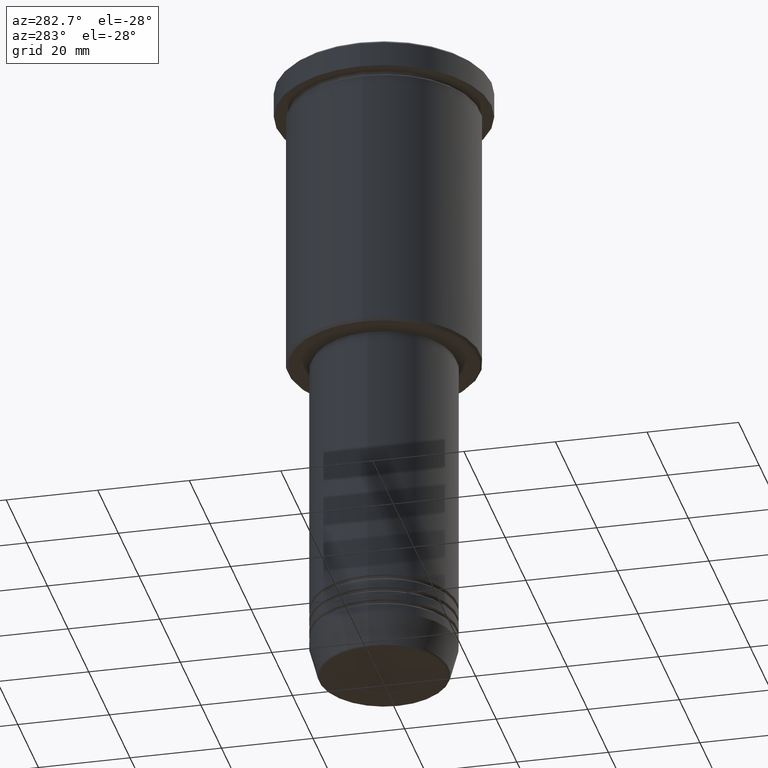
[diagram: clean part render]
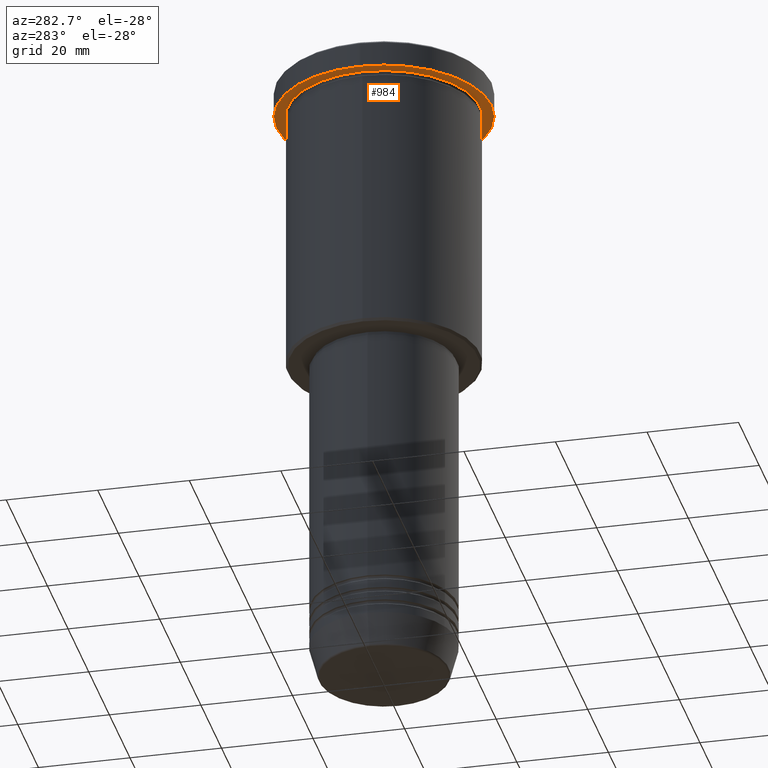
[diagram: same view with one face highlighted and labeled with its STEP entity id]
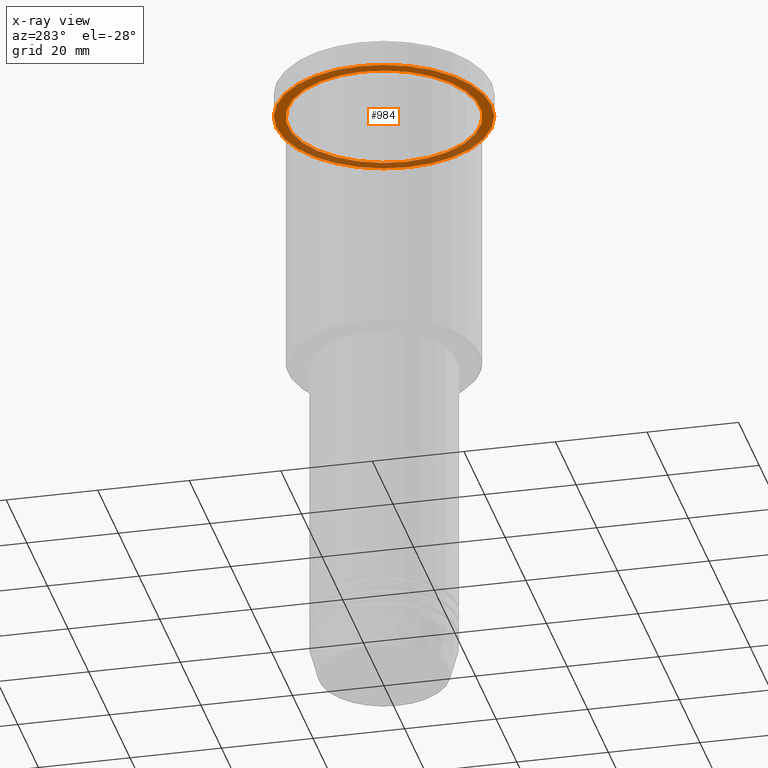
[diagram: x-ray of the same camera — body ghosted, the highlighted face saturated]
A machine part, auxiliary view. The second image highlights one B-rep face of the part: STEP entity #984.
The next image is the same camera in x-ray: the body ghosted, the highlighted face saturated — about 37% of this face is hidden behind the body in this view.
In plain terms, the highlighted planar face has unit normal (0, 0, -1).
Its self-contained STEP definition (entity closure, byte-faithful):
#4 = AXIS2_PLACEMENT_3D ( 'NONE', #1023, #185, #377 ) ;
#26 = DIRECTION ( 'NONE',  ( 1.000000000000000000, 0.000000000000000000, 0.000000000000000000 ) ) ;
#99 = VERTEX_POINT ( 'NONE', #475 ) ;
#105 = DIRECTION ( 'NONE',  ( 0.000000000000000000, 0.000000000000000000, -1.000000000000000000 ) ) ;
#177 = AXIS2_PLACEMENT_3D ( 'NONE', #527, #705, #1080 ) ;
#185 = DIRECTION ( 'NONE',  ( -0.000000000000000000, -0.000000000000000000, 1.000000000000000000 ) ) ;
#249 = ORIENTED_EDGE ( 'NONE', *, *, #891, .T. ) ;
#273 = AXIS2_PLACEMENT_3D ( 'NONE', #1066, #1155, #517 ) ;
#285 = DIRECTION ( 'NONE',  ( -1.000000000000000000, 0.000000000000000000, -0.000000000000000000 ) ) ;
#288 = AXIS2_PLACEMENT_3D ( 'NONE', #553, #105, #285 ) ;
#342 = EDGE_CURVE ( 'NONE', #1008, #99, #764, .T. ) ;
#348 = PLANE ( 'NONE',  #288 ) ;
#364 = CARTESIAN_POINT ( 'NONE',  ( -21.00000000000000000, 0.000000000000000000, -5.999999999999994671 ) ) ;
#377 = DIRECTION ( 'NONE',  ( 1.000000000000000000, 0.000000000000000000, 0.000000000000000000 ) ) ;
#409 = EDGE_LOOP ( 'NONE', ( #631, #249 ) ) ;
#468 = DIRECTION ( 'NONE',  ( -0.000000000000000000, -0.000000000000000000, 1.000000000000000000 ) ) ;
#475 = CARTESIAN_POINT ( 'NONE',  ( 21.00000000000000000, 2.571758278209441661E-15, -5.999999999999994671 ) ) ;
#501 = EDGE_CURVE ( 'NONE', #828, #1090, #516, .T. ) ;
#516 = CIRCLE ( 'NONE', #686, 23.50000000000000000 ) ;
#517 = DIRECTION ( 'NONE',  ( -1.000000000000000000, 0.000000000000000000, 0.000000000000000000 ) ) ;
#523 = EDGE_CURVE ( 'NONE', #1090, #828, #806, .T. ) ;
#527 = CARTESIAN_POINT ( 'NONE',  ( 0.000000000000000000, 0.000000000000000000, -5.999999999999994671 ) ) ;
#553 = CARTESIAN_POINT ( 'NONE',  ( 0.000000000000000000, 23.50000000000000000, -5.999999999999994671 ) ) ;
#599 = CARTESIAN_POINT ( 'NONE',  ( 23.50000000000000000, 0.000000000000000000, -5.999999999999994671 ) ) ;
#631 = ORIENTED_EDGE ( 'NONE', *, *, #342, .T. ) ;
#686 = AXIS2_PLACEMENT_3D ( 'NONE', #1117, #468, #26 ) ;
#687 = CIRCLE ( 'NONE', #177, 21.00000000000000000 ) ;
#705 = DIRECTION ( 'NONE',  ( -0.000000000000000000, -0.000000000000000000, 1.000000000000000000 ) ) ;
#720 = ORIENTED_EDGE ( 'NONE', *, *, #501, .F. ) ;
#722 = FACE_BOUND ( 'NONE', #409, .T. ) ;
#764 = CIRCLE ( 'NONE', #273, 21.00000000000000000 ) ;
#806 = CIRCLE ( 'NONE', #4, 23.50000000000000000 ) ;
#828 = VERTEX_POINT ( 'NONE', #599 ) ;
#844 = FACE_OUTER_BOUND ( 'NONE', #986, .T. ) ;
#891 = EDGE_CURVE ( 'NONE', #99, #1008, #687, .T. ) ;
#984 = ADVANCED_FACE ( 'NONE', ( #722, #844 ), #348, .T. ) ;
#986 = EDGE_LOOP ( 'NONE', ( #720, #1120 ) ) ;
#1008 = VERTEX_POINT ( 'NONE', #364 ) ;
#1023 = CARTESIAN_POINT ( 'NONE',  ( 0.000000000000000000, 0.000000000000000000, -5.999999999999994671 ) ) ;
#1066 = CARTESIAN_POINT ( 'NONE',  ( 0.000000000000000000, 0.000000000000000000, -5.999999999999994671 ) ) ;
#1080 = DIRECTION ( 'NONE',  ( -1.000000000000000000, 0.000000000000000000, 0.000000000000000000 ) ) ;
#1090 = VERTEX_POINT ( 'NONE', #1122 ) ;
#1117 = CARTESIAN_POINT ( 'NONE',  ( 0.000000000000000000, 0.000000000000000000, -5.999999999999994671 ) ) ;
#1120 = ORIENTED_EDGE ( 'NONE', *, *, #523, .F. ) ;
#1122 = CARTESIAN_POINT ( 'NONE',  ( -23.50000000000000000, 2.877919977996280320E-15, -5.999999999999994671 ) ) ;
#1155 = DIRECTION ( 'NONE',  ( -0.000000000000000000, -0.000000000000000000, 1.000000000000000000 ) ) ;